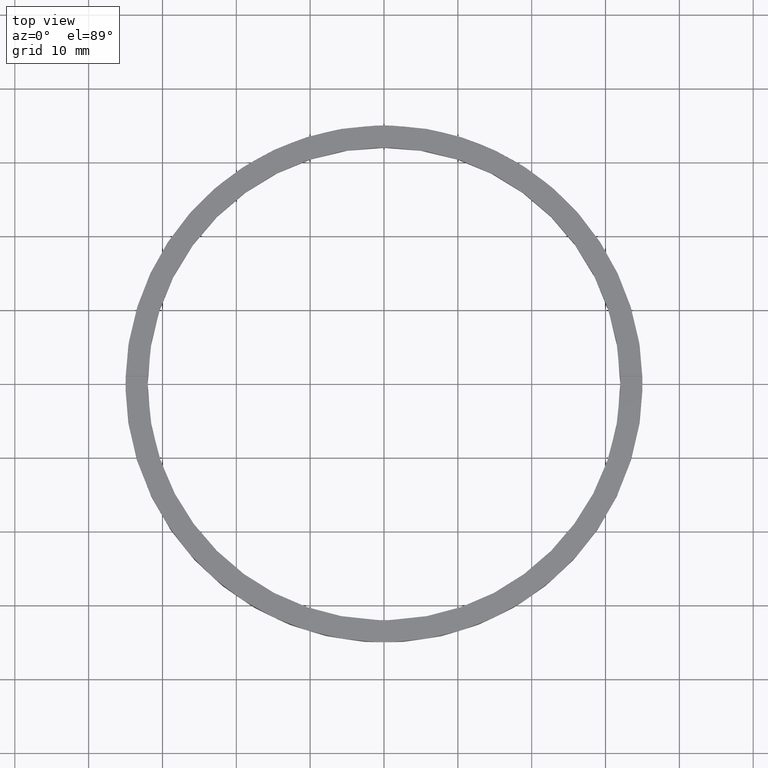
[diagram: clean part render]
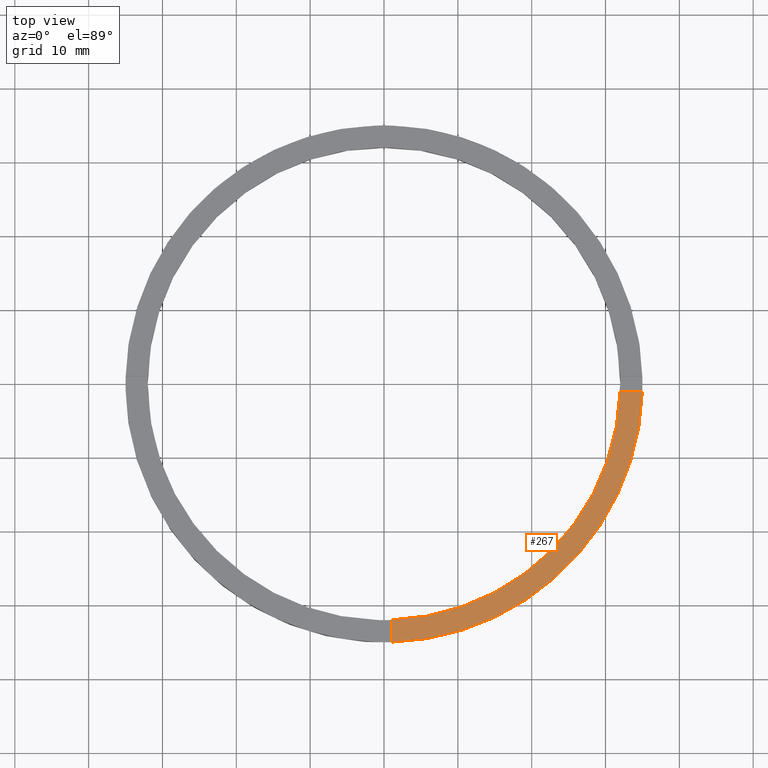
[diagram: same view with one face highlighted and labeled with its STEP entity id]
A machine part, top view. The second image highlights one B-rep face of the part: STEP entity #267.
In plain terms, the highlighted planar face has unit normal (0, 0, 1).
Its self-contained STEP definition (entity closure, byte-faithful):
#10 = VERTEX_POINT ( 'NONE', #442 ) ;
#36 = AXIS2_PLACEMENT_3D ( 'NONE', #46, #341, #299 ) ;
#46 = CARTESIAN_POINT ( 'NONE',  ( 0.000000000000000000, 0.000000000000000000, 3.500000000000000000 ) ) ;
#51 = DIRECTION ( 'NONE',  ( 1.000000000000000000, 6.505213034913025371E-17, 0.000000000000000000 ) ) ;
#118 = VECTOR ( 'NONE', #51, 1000.000000000000000 ) ;
#123 = ORIENTED_EDGE ( 'NONE', *, *, #581, .F. ) ;
#129 = EDGE_CURVE ( 'NONE', #10, #524, #481, .T. ) ;
#137 = ORIENTED_EDGE ( 'NONE', *, *, #129, .T. ) ;
#159 = CARTESIAN_POINT ( 'NONE',  ( 25.00000000000000000, -1.000000000000158540, 3.500000000000000000 ) ) ;
#237 = FACE_OUTER_BOUND ( 'NONE', #679, .T. ) ;
#261 = VERTEX_POINT ( 'NONE', #348 ) ;
#263 = ORIENTED_EDGE ( 'NONE', *, *, #363, .F. ) ;
#266 = VERTEX_POINT ( 'NONE', #585 ) ;
#267 = ADVANCED_FACE ( 'NONE', ( #237 ), #593, .T. ) ;
#296 = DIRECTION ( 'NONE',  ( 1.000000000000000000, 0.000000000000000000, -0.000000000000000000 ) ) ;
#299 = DIRECTION ( 'NONE',  ( 1.000000000000000000, 0.000000000000000000, 0.000000000000000000 ) ) ;
#300 = CIRCLE ( 'NONE', #36, 32.00000000000000000 ) ;
#310 = EDGE_CURVE ( 'NONE', #261, #524, #657, .T. ) ;
#313 = DIRECTION ( 'NONE',  ( 1.000000000000000000, 0.000000000000000000, 0.000000000000000000 ) ) ;
#326 = CARTESIAN_POINT ( 'NONE',  ( 34.98571136907180090, -1.000000000000157874, 3.500000000000000000 ) ) ;
#331 = DIRECTION ( 'NONE',  ( 0.000000000000000000, 0.000000000000000000, 1.000000000000000000 ) ) ;
#341 = DIRECTION ( 'NONE',  ( 0.000000000000000000, 0.000000000000000000, 1.000000000000000000 ) ) ;
#348 = CARTESIAN_POINT ( 'NONE',  ( 31.98437118343894170, -1.000000000000157874, 3.500000000000000000 ) ) ;
#363 = EDGE_CURVE ( 'NONE', #266, #261, #300, .T. ) ;
#392 = AXIS2_PLACEMENT_3D ( 'NONE', #702, #331, #296 ) ;
#394 = CARTESIAN_POINT ( 'NONE',  ( 0.9999999999998382405, -25.00000000000018829, 3.500000000000000000 ) ) ;
#418 = ORIENTED_EDGE ( 'NONE', *, *, #310, .F. ) ;
#442 = CARTESIAN_POINT ( 'NONE',  ( 0.9999999999998395728, -34.98571136907181511, 3.500000000000000000 ) ) ;
#448 = LINE ( 'NONE', #394, #725 ) ;
#481 = CIRCLE ( 'NONE', #612, 35.00000000000000711 ) ;
#488 = DIRECTION ( 'NONE',  ( -1.301042606982605074E-16, 1.000000000000000000, -0.000000000000000000 ) ) ;
#524 = VERTEX_POINT ( 'NONE', #326 ) ;
#581 = EDGE_CURVE ( 'NONE', #10, #266, #448, .T. ) ;
#585 = CARTESIAN_POINT ( 'NONE',  ( 0.9999999999998391287, -31.98437118343895591, 3.500000000000000000 ) ) ;
#593 = PLANE ( 'NONE',  #392 ) ;
#605 = CARTESIAN_POINT ( 'NONE',  ( 0.000000000000000000, 0.000000000000000000, 3.500000000000000000 ) ) ;
#612 = AXIS2_PLACEMENT_3D ( 'NONE', #605, #711, #313 ) ;
#657 = LINE ( 'NONE', #159, #118 ) ;
#679 = EDGE_LOOP ( 'NONE', ( #418, #263, #123, #137 ) ) ;
#702 = CARTESIAN_POINT ( 'NONE',  ( 0.000000000000000000, 0.000000000000000000, 3.500000000000000000 ) ) ;
#711 = DIRECTION ( 'NONE',  ( 0.000000000000000000, 0.000000000000000000, 1.000000000000000000 ) ) ;
#725 = VECTOR ( 'NONE', #488, 1000.000000000000000 ) ;